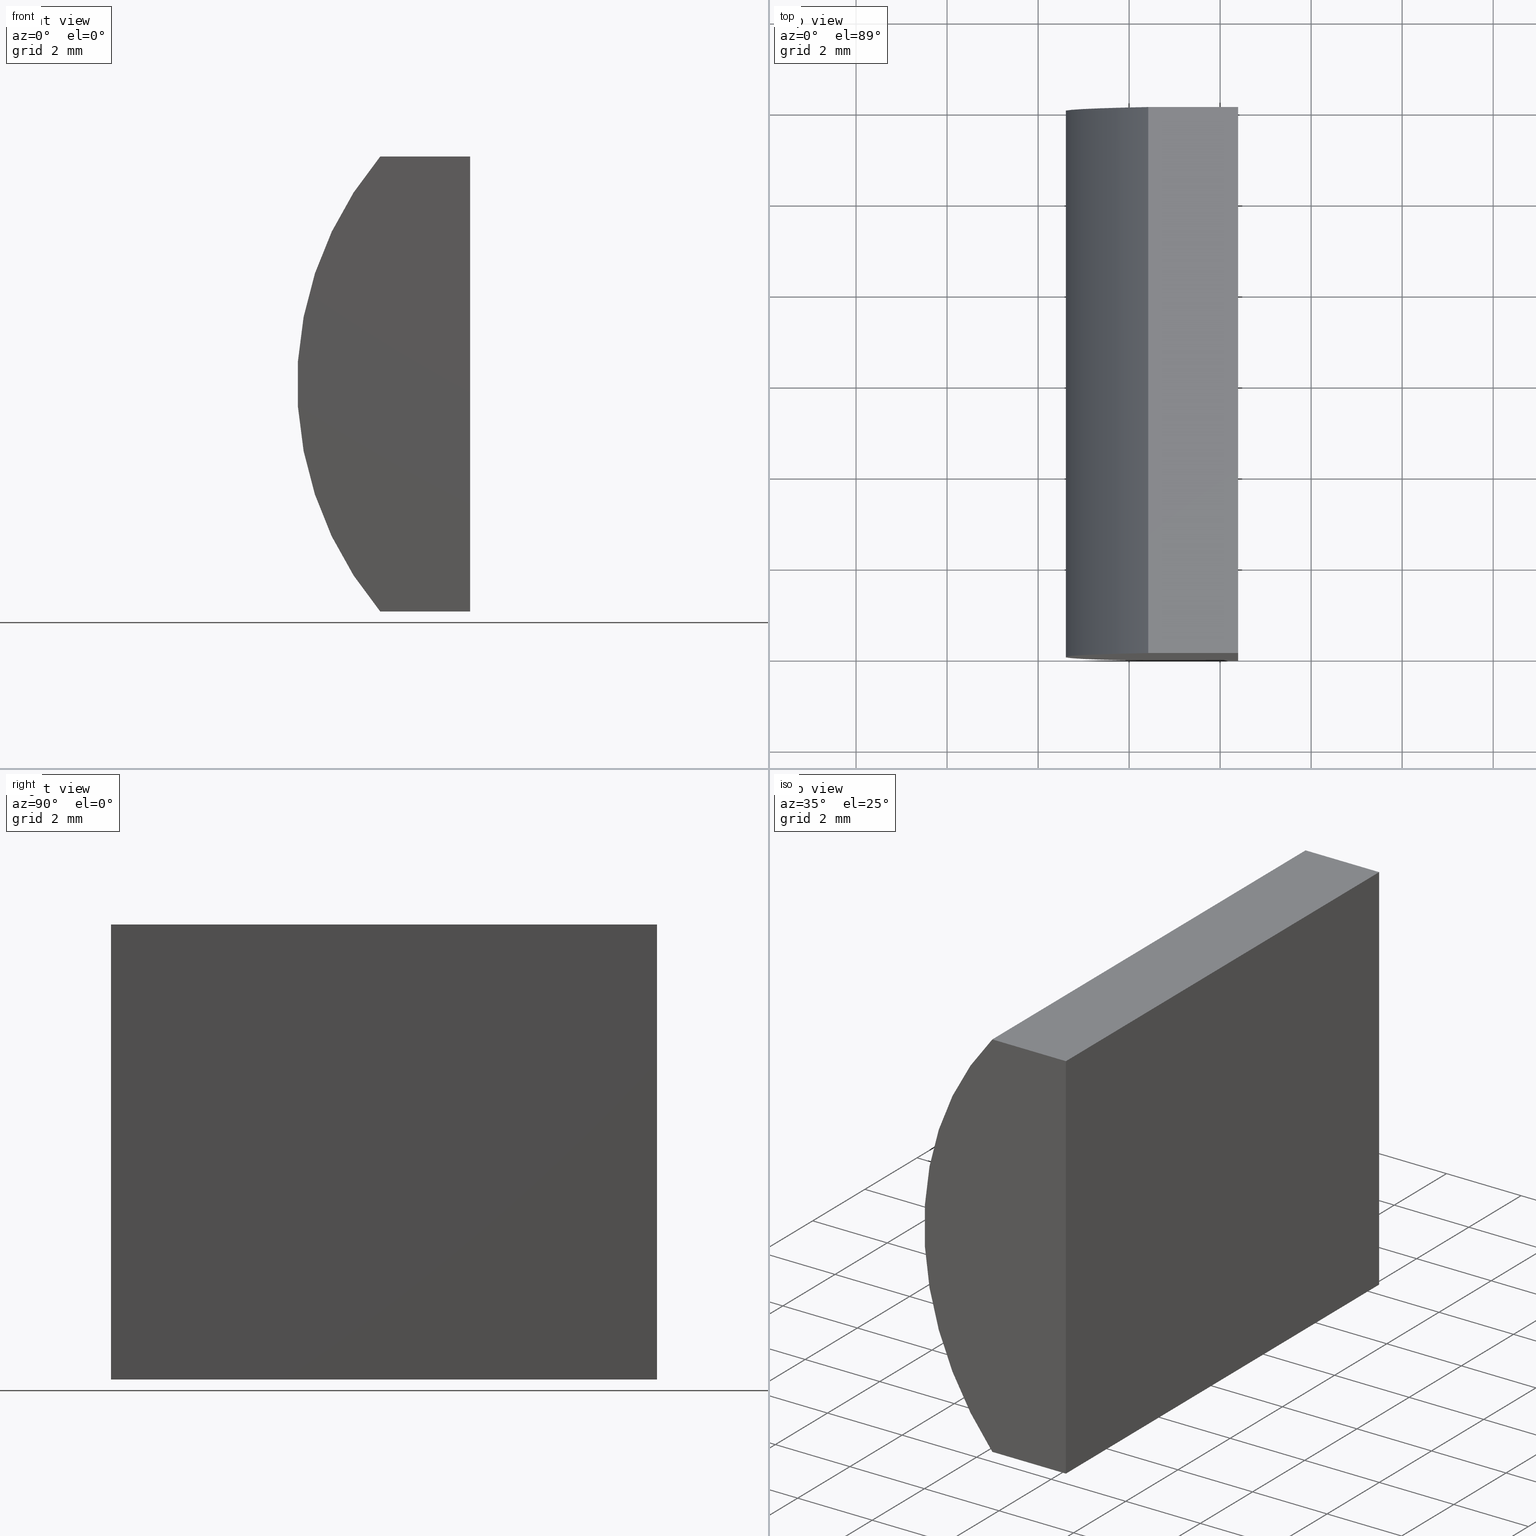
[diagram: canonical four-view strip — front | top / right | iso, engineering-drawing reading convention]
A machine part, canonical four-view strip (front | top / right | iso — engineering-drawing reading convention). The complete STEP part file that produces these views, byte-faithful:
ISO-10303-21;
HEADER;
FILE_DESCRIPTION (( 'STEP AP214' ),
    '1' );
FILE_NAME ('155013.STEP',
    '2019-06-17T01:48:12',
    ( 'user' ),
    ( '΢���й�' ),
    'SwSTEP 2.0',
    'SolidWorks 2016',
    '' );
FILE_SCHEMA (( 'AUTOMOTIVE_DESIGN' ));
ENDSEC;

DATA;
#1 = ADVANCED_FACE ( 'NONE', ( #104 ), #153, .F. ) ;
#2 = CARTESIAN_POINT ( 'NONE',  ( -1.579237509164058500, 12.00000000000000000, 5.000000000000000000 ) ) ;
#3 = EDGE_CURVE ( 'NONE', #82, #86, #166, .T. ) ;
#4 = ORIENTED_EDGE ( 'NONE', *, *, #200, .F. ) ;
#5 = EDGE_LOOP ( 'NONE', ( #77, #6, #204, #175 ) ) ;
#6 = ORIENTED_EDGE ( 'NONE', *, *, #3, .F. ) ;
#7 =( LENGTH_UNIT ( ) NAMED_UNIT ( * ) SI_UNIT ( .MILLI., .METRE. ) );
#8 = SHAPE_DEFINITION_REPRESENTATION ( #112, #13 ) ;
#9 =( NAMED_UNIT ( * ) PLANE_ANGLE_UNIT ( ) SI_UNIT ( $, .RADIAN. ) );
#10 = EDGE_CURVE ( 'NONE', #38, #102, #88, .T. ) ;
#11 =( LENGTH_UNIT ( ) NAMED_UNIT ( * ) SI_UNIT ( .MILLI., .METRE. ) );
#12 = CARTESIAN_POINT ( 'NONE',  ( 4.355204334851265500, 12.00000000000000000, 4.286263797015675000E-017 ) ) ;
#13 = ADVANCED_BREP_SHAPE_REPRESENTATION ( '155013', ( #149, #105 ), #188 ) ;
#14 = VECTOR ( 'NONE', #63, 1000.000000000000000 ) ;
#15 = DIRECTION ( 'NONE',  ( 8.785892991656763200E-016, -0.0000000000000000000, 1.000000000000000000 ) ) ;
#16 = STYLED_ITEM ( 'NONE', ( #99 ), #13 ) ;
#17 =( GEOMETRIC_REPRESENTATION_CONTEXT ( 3 ) GLOBAL_UNCERTAINTY_ASSIGNED_CONTEXT ( ( #140 ) ) GLOBAL_UNIT_ASSIGNED_CONTEXT ( ( #18, #9, #68 ) ) REPRESENTATION_CONTEXT ( 'NONE', 'WORKASPACE' ) );
#18 =( LENGTH_UNIT ( ) NAMED_UNIT ( * ) SI_UNIT ( .MILLI., .METRE. ) );
#19 = EDGE_LOOP ( 'NONE', ( #111, #4, #198, #130 ) ) ;
#20 = CARTESIAN_POINT ( 'NONE',  ( -1.579237509164058500, 12.00000000000000000, -5.000000000000000000 ) ) ;
#21 = DIRECTION ( 'NONE',  ( -1.000000000000000000, 0.0000000000000000000, 3.035766082959411900E-016 ) ) ;
#22 = VERTEX_POINT ( 'NONE', #124 ) ;
#23 = UNCERTAINTY_MEASURE_WITH_UNIT (LENGTH_MEASURE( 1.000000000000000100E-005 ), #11, 'distance_accuracy_value', 'NONE');
#24 = LINE ( 'NONE', #114, #28 ) ;
#25 = DIRECTION ( 'NONE',  ( -0.0000000000000000000, -1.000000000000000000, -0.0000000000000000000 ) ) ;
#26 = CARTESIAN_POINT ( 'NONE',  ( -1.579237509164058500, 0.0000000000000000000, -5.000000000000000000 ) ) ;
#27 = FACE_OUTER_BOUND ( 'NONE', #5, .T. ) ;
#28 = VECTOR ( 'NONE', #165, 1000.000000000000000 ) ;
#29 = VERTEX_POINT ( 'NONE', #43 ) ;
#30 = DIRECTION ( 'NONE',  ( 1.000000000000000000, 0.0000000000000000000, 0.0000000000000000000 ) ) ;
#31 = ADVANCED_FACE ( 'NONE', ( #95 ), #161, .T. ) ;
#32 = PRODUCT_DEFINITION ( 'δ֪', '', #180, #148 ) ;
#33 = CARTESIAN_POINT ( 'NONE',  ( -1.579237509164058500, 12.00000000000000000, -5.000000000000000000 ) ) ;
#34 = DIRECTION ( 'NONE',  ( 0.0000000000000000000, 1.000000000000000000, 0.0000000000000000000 ) ) ;
#35 = ORIENTED_EDGE ( 'NONE', *, *, #160, .F. ) ;
#36 = ADVANCED_FACE ( 'NONE', ( #194 ), #62, .F. ) ;
#37 = AXIS2_PLACEMENT_3D ( 'NONE', #203, #109, #127 ) ;
#38 = VERTEX_POINT ( 'NONE', #197 ) ;
#39 = PRESENTATION_STYLE_ASSIGNMENT (( #186 ) ) ;
#40 = ORIENTED_EDGE ( 'NONE', *, *, #147, .F. ) ;
#41 = LINE ( 'NONE', #2, #70 ) ;
#42 = CARTESIAN_POINT ( 'NONE',  ( -1.579237509164058500, 0.0000000000000000000, 5.000000000000000000 ) ) ;
#43 = CARTESIAN_POINT ( 'NONE',  ( 0.3952043348512662100, 12.00000000000000000, 5.000000000000000000 ) ) ;
#44 = CIRCLE ( 'NONE', #144, 7.759999999999999800 ) ;
#45 = COLOUR_RGB ( '',1.000000000000000000, 1.000000000000000000, 1.000000000000000000 ) ;
#46 = APPLICATION_PROTOCOL_DEFINITION ( 'draft international standard', 'automotive_design', 1998, #155 ) ;
#47 = CARTESIAN_POINT ( 'NONE',  ( -1.579237509164058500, 12.00000000000000000, 5.000000000000000000 ) ) ;
#48 = DIRECTION ( 'NONE',  ( 0.0000000000000000000, 0.0000000000000000000, -1.000000000000000000 ) ) ;
#49 = VECTOR ( 'NONE', #110, 1000.000000000000000 ) ;
#50 = CARTESIAN_POINT ( 'NONE',  ( 0.0000000000000000000, 0.0000000000000000000, 0.0000000000000000000 ) ) ;
#51 = CARTESIAN_POINT ( 'NONE',  ( -1.579237509164058500, 12.00000000000000000, -5.000000000000000000 ) ) ;
#52 = ADVANCED_FACE ( 'NONE', ( #71 ), #181, .T. ) ;
#53 = DIRECTION ( 'NONE',  ( 0.0000000000000000000, 1.000000000000000000, 0.0000000000000000000 ) ) ;
#54 = PRESENTATION_LAYER_ASSIGNMENT (  '', '', ( #16 ) ) ;
#55 = EDGE_CURVE ( 'NONE', #82, #150, #44, .T. ) ;
#56 = DIRECTION ( 'NONE',  ( 0.0000000000000000000, 1.000000000000000000, 0.0000000000000000000 ) ) ;
#57 = AXIS2_PLACEMENT_3D ( 'NONE', #79, #21, #90 ) ;
#58 = LINE ( 'NONE', #192, #80 ) ;
#59 = EDGE_CURVE ( 'NONE', #29, #22, #83, .T. ) ;
#60 = ORIENTED_EDGE ( 'NONE', *, *, #87, .F. ) ;
#61 = DIRECTION ( 'NONE',  ( -0.0000000000000000000, -1.000000000000000000, -0.0000000000000000000 ) ) ;
#62 = PLANE ( 'NONE',  #37 ) ;
#63 = DIRECTION ( 'NONE',  ( -1.000000000000000000, -0.0000000000000000000, 8.785892991656764200E-016 ) ) ;
#64 = CARTESIAN_POINT ( 'NONE',  ( -1.579237509164058500, 12.00000000000000000, 5.000000000000000000 ) ) ;
#65 = LINE ( 'NONE', #33, #14 ) ;
#66 = SURFACE_STYLE_FILL_AREA ( #69 ) ;
#67 = DIRECTION ( 'NONE',  ( 1.000000000000000000, 0.0000000000000000000, 0.0000000000000000000 ) ) ;
#68 =( NAMED_UNIT ( * ) SI_UNIT ( $, .STERADIAN. ) SOLID_ANGLE_UNIT ( ) );
#69 = FILL_AREA_STYLE ('',( #156 ) ) ;
#70 = VECTOR ( 'NONE', #189, 1000.000000000000000 ) ;
#71 = FACE_OUTER_BOUND ( 'NONE', #162, .T. ) ;
#72 = AXIS2_PLACEMENT_3D ( 'NONE', #12, #56, #81 ) ;
#73 = EDGE_CURVE ( 'NONE', #22, #82, #65, .T. ) ;
#74 = MECHANICAL_DESIGN_GEOMETRIC_PRESENTATION_REPRESENTATION (  '', ( #16 ), #196 ) ;
#75 =( NAMED_UNIT ( * ) SI_UNIT ( $, .STERADIAN. ) SOLID_ANGLE_UNIT ( ) );
#76 = FILL_AREA_STYLE ('',( #93 ) ) ;
#77 = ORIENTED_EDGE ( 'NONE', *, *, #133, .T. ) ;
#78 = LINE ( 'NONE', #169, #176 ) ;
#79 = CARTESIAN_POINT ( 'NONE',  ( 0.3952043348512631600, 12.00000000000000000, -5.000000000000001800 ) ) ;
#80 = VECTOR ( 'NONE', #172, 1000.000000000000000 ) ;
#81 = DIRECTION ( 'NONE',  ( 0.0000000000000000000, -0.0000000000000000000, 1.000000000000000000 ) ) ;
#82 = VERTEX_POINT ( 'NONE', #20 ) ;
#83 = LINE ( 'NONE', #126, #179 ) ;
#84 = ADVANCED_FACE ( 'NONE', ( #27 ), #168, .F. ) ;
#85 = MECHANICAL_DESIGN_GEOMETRIC_PRESENTATION_REPRESENTATION (  '', ( #118 ), #17 ) ;
#86 = VERTEX_POINT ( 'NONE', #26 ) ;
#87 = EDGE_CURVE ( 'NONE', #150, #29, #116, .T. ) ;
#88 = LINE ( 'NONE', #42, #201 ) ;
#89 = CARTESIAN_POINT ( 'NONE',  ( -1.579237509164058500, 12.00000000000000000, -5.000000000000000000 ) ) ;
#90 = DIRECTION ( 'NONE',  ( 3.035766082959411900E-016, 0.0000000000000000000, 1.000000000000000000 ) ) ;
#91 = DIRECTION ( 'NONE',  ( 0.0000000000000000000, 0.0000000000000000000, 1.000000000000000000 ) ) ;
#92 = EDGE_LOOP ( 'NONE', ( #125, #170, #98, #163 ) ) ;
#93 = FILL_AREA_STYLE_COLOUR ( '', #45 ) ;
#94 = SURFACE_STYLE_USAGE ( .BOTH. , #199 ) ;
#95 = FACE_OUTER_BOUND ( 'NONE', #92, .T. ) ;
#96 = APPLICATION_CONTEXT ( 'automotive_design' ) ;
#97 = AXIS2_PLACEMENT_3D ( 'NONE', #123, #158, #48 ) ;
#98 = ORIENTED_EDGE ( 'NONE', *, *, #55, .F. ) ;
#99 = PRESENTATION_STYLE_ASSIGNMENT (( #94 ) ) ;
#100 = VECTOR ( 'NONE', #25, 1000.000000000000000 ) ;
#101 = SURFACE_STYLE_FILL_AREA ( #76 ) ;
#102 = VERTEX_POINT ( 'NONE', #190 ) ;
#103 = AXIS2_PLACEMENT_3D ( 'NONE', #89, #15, #202 ) ;
#104 = FACE_OUTER_BOUND ( 'NONE', #187, .T. ) ;
#105 = AXIS2_PLACEMENT_3D ( 'NONE', #50, #185, #67 ) ;
#106 = ORIENTED_EDGE ( 'NONE', *, *, #73, .T. ) ;
#107 = CARTESIAN_POINT ( 'NONE',  ( 4.355204334851265500, 0.0000000000000000000, 4.286263797015675000E-017 ) ) ;
#108 =( NAMED_UNIT ( * ) SI_UNIT ( $, .STERADIAN. ) SOLID_ANGLE_UNIT ( ) );
#109 = DIRECTION ( 'NONE',  ( 0.0000000000000000000, 0.0000000000000000000, -1.000000000000000000 ) ) ;
#110 = DIRECTION ( 'NONE',  ( -1.000000000000000000, -0.0000000000000000000, 8.785892991656764200E-016 ) ) ;
#111 = ORIENTED_EDGE ( 'NONE', *, *, #191, .T. ) ;
#112 = PRODUCT_DEFINITION_SHAPE ( 'NONE', 'NONE',  #32 ) ;
#113 = DIRECTION ( 'NONE',  ( 1.000000000000000000, 0.0000000000000000000, 0.0000000000000000000 ) ) ;
#114 = CARTESIAN_POINT ( 'NONE',  ( 0.3952043348512662100, 12.00000000000000000, 5.000000000000000000 ) ) ;
#115 = ORIENTED_EDGE ( 'NONE', *, *, #10, .F. ) ;
#116 = LINE ( 'NONE', #47, #146 ) ;
#117 = AXIS2_PLACEMENT_3D ( 'NONE', #107, #53, #164 ) ;
#118 = STYLED_ITEM ( 'NONE', ( #39 ), #149 ) ;
#119 = EDGE_LOOP ( 'NONE', ( #136, #35, #60, #159 ) ) ;
#120 = CIRCLE ( 'NONE', #173, 7.759999999999999800 ) ;
#121 = DIRECTION ( 'NONE',  ( 0.0000000000000000000, 1.000000000000000000, 0.0000000000000000000 ) ) ;
#122 = APPLICATION_PROTOCOL_DEFINITION ( 'draft international standard', 'automotive_design', 1998, #96 ) ;
#123 = CARTESIAN_POINT ( 'NONE',  ( 4.355204334851265500, 12.00000000000000000, 4.286263797015675000E-017 ) ) ;
#124 = CARTESIAN_POINT ( 'NONE',  ( 0.3952043348512631600, 12.00000000000000000, -5.000000000000001800 ) ) ;
#125 = ORIENTED_EDGE ( 'NONE', *, *, #147, .T. ) ;
#126 = CARTESIAN_POINT ( 'NONE',  ( 0.3952043348512631600, 12.00000000000000000, -5.000000000000001800 ) ) ;
#127 = DIRECTION ( 'NONE',  ( -1.000000000000000000, 0.0000000000000000000, -0.0000000000000000000 ) ) ;
#128 = CARTESIAN_POINT ( 'NONE',  ( 4.355204334851265500, 0.0000000000000000000, 4.286263797015675000E-017 ) ) ;
#129 = LINE ( 'NONE', #139, #49 ) ;
#130 = ORIENTED_EDGE ( 'NONE', *, *, #160, .T. ) ;
#131 = PRODUCT ( '155013', '155013', '', ( #152 ) ) ;
#132 = ORIENTED_EDGE ( 'NONE', *, *, #191, .F. ) ;
#133 = EDGE_CURVE ( 'NONE', #182, #86, #129, .T. ) ;
#134 = ORIENTED_EDGE ( 'NONE', *, *, #133, .F. ) ;
#135 =( NAMED_UNIT ( * ) PLANE_ANGLE_UNIT ( ) SI_UNIT ( $, .RADIAN. ) );
#136 = ORIENTED_EDGE ( 'NONE', *, *, #10, .T. ) ;
#137 =( NAMED_UNIT ( * ) PLANE_ANGLE_UNIT ( ) SI_UNIT ( $, .RADIAN. ) );
#138 = ORIENTED_EDGE ( 'NONE', *, *, #55, .T. ) ;
#139 = CARTESIAN_POINT ( 'NONE',  ( -1.579237509164058500, 0.0000000000000000000, -5.000000000000000000 ) ) ;
#140 = UNCERTAINTY_MEASURE_WITH_UNIT (LENGTH_MEASURE( 1.000000000000000100E-005 ), #18, 'distance_accuracy_value', 'NONE');
#141 = PLANE ( 'NONE',  #57 ) ;
#142 = ORIENTED_EDGE ( 'NONE', *, *, #59, .T. ) ;
#143 = DIRECTION ( 'NONE',  ( 0.0000000000000000000, 0.0000000000000000000, 1.000000000000000000 ) ) ;
#144 = AXIS2_PLACEMENT_3D ( 'NONE', #184, #121, #91 ) ;
#145 = FACE_OUTER_BOUND ( 'NONE', #19, .T. ) ;
#146 = VECTOR ( 'NONE', #113, 1000.000000000000000 ) ;
#147 = EDGE_CURVE ( 'NONE', #86, #38, #120, .T. ) ;
#148 = PRODUCT_DEFINITION_CONTEXT ( 'detailed design', #155, 'design' ) ;
#149 = MANIFOLD_SOLID_BREP ( '͹̨-����1', #174 ) ;
#150 = VERTEX_POINT ( 'NONE', #64 ) ;
#151 = SURFACE_SIDE_STYLE ('',( #101 ) ) ;
#152 = PRODUCT_CONTEXT ( 'NONE', #96, 'mechanical' ) ;
#153 = PLANE ( 'NONE',  #117 ) ;
#154 = UNCERTAINTY_MEASURE_WITH_UNIT (LENGTH_MEASURE( 1.000000000000000100E-005 ), #7, 'distance_accuracy_value', 'NONE');
#155 = APPLICATION_CONTEXT ( 'automotive_design' ) ;
#156 = FILL_AREA_STYLE_COLOUR ( '', #167 ) ;
#157 = DIRECTION ( 'NONE',  ( -3.035766082959411900E-016, -0.0000000000000000000, -1.000000000000000000 ) ) ;
#158 = DIRECTION ( 'NONE',  ( -0.0000000000000000000, -1.000000000000000000, -0.0000000000000000000 ) ) ;
#159 = ORIENTED_EDGE ( 'NONE', *, *, #195, .T. ) ;
#160 = EDGE_CURVE ( 'NONE', #29, #102, #24, .T. ) ;
#161 = CYLINDRICAL_SURFACE ( 'NONE', #97, 7.759999999999999800 ) ;
#162 = EDGE_LOOP ( 'NONE', ( #138, #193, #142, #106 ) ) ;
#163 = ORIENTED_EDGE ( 'NONE', *, *, #3, .T. ) ;
#164 = DIRECTION ( 'NONE',  ( 0.0000000000000000000, -0.0000000000000000000, 1.000000000000000000 ) ) ;
#165 = DIRECTION ( 'NONE',  ( -0.0000000000000000000, -1.000000000000000000, -0.0000000000000000000 ) ) ;
#166 = LINE ( 'NONE', #51, #100 ) ;
#167 = COLOUR_RGB ( '',1.000000000000000000, 1.000000000000000000, 1.000000000000000000 ) ;
#168 = PLANE ( 'NONE',  #103 ) ;
#169 = CARTESIAN_POINT ( 'NONE',  ( 0.3952043348512631600, 12.00000000000000000, -5.000000000000001800 ) ) ;
#170 = ORIENTED_EDGE ( 'NONE', *, *, #195, .F. ) ;
#171 = PRODUCT_RELATED_PRODUCT_CATEGORY ( 'part', '', ( #131 ) ) ;
#172 = DIRECTION ( 'NONE',  ( -3.035766082959411900E-016, -0.0000000000000000000, -1.000000000000000000 ) ) ;
#173 = AXIS2_PLACEMENT_3D ( 'NONE', #128, #34, #143 ) ;
#174 = CLOSED_SHELL ( 'NONE', ( #31, #36, #177, #84, #52, #1 ) ) ;
#175 = ORIENTED_EDGE ( 'NONE', *, *, #200, .T. ) ;
#176 = VECTOR ( 'NONE', #61, 1000.000000000000000 ) ;
#177 = ADVANCED_FACE ( 'NONE', ( #145 ), #141, .F. ) ;
#178 = PRESENTATION_LAYER_ASSIGNMENT (  '', '', ( #118 ) ) ;
#179 = VECTOR ( 'NONE', #157, 1000.000000000000000 ) ;
#180 = PRODUCT_DEFINITION_FORMATION_WITH_SPECIFIED_SOURCE ( '�κ�', '', #131, .NOT_KNOWN. ) ;
#181 = PLANE ( 'NONE',  #72 ) ;
#182 = VERTEX_POINT ( 'NONE', #183 ) ;
#183 = CARTESIAN_POINT ( 'NONE',  ( 0.3952043348512631600, 0.0000000000000000000, -5.000000000000001800 ) ) ;
#184 = CARTESIAN_POINT ( 'NONE',  ( 4.355204334851265500, 12.00000000000000000, 4.286263797015675000E-017 ) ) ;
#185 = DIRECTION ( 'NONE',  ( 0.0000000000000000000, 0.0000000000000000000, 1.000000000000000000 ) ) ;
#186 = SURFACE_STYLE_USAGE ( .BOTH. , #151 ) ;
#187 = EDGE_LOOP ( 'NONE', ( #40, #134, #132, #115 ) ) ;
#188 =( GEOMETRIC_REPRESENTATION_CONTEXT ( 3 ) GLOBAL_UNCERTAINTY_ASSIGNED_CONTEXT ( ( #23 ) ) GLOBAL_UNIT_ASSIGNED_CONTEXT ( ( #11, #137, #108 ) ) REPRESENTATION_CONTEXT ( 'NONE', 'WORKASPACE' ) );
#189 = DIRECTION ( 'NONE',  ( -0.0000000000000000000, -1.000000000000000000, -0.0000000000000000000 ) ) ;
#190 = CARTESIAN_POINT ( 'NONE',  ( 0.3952043348512662100, 0.0000000000000000000, 5.000000000000000000 ) ) ;
#191 = EDGE_CURVE ( 'NONE', #102, #182, #58, .T. ) ;
#192 = CARTESIAN_POINT ( 'NONE',  ( 0.3952043348512631600, 0.0000000000000000000, -5.000000000000001800 ) ) ;
#193 = ORIENTED_EDGE ( 'NONE', *, *, #87, .T. ) ;
#194 = FACE_OUTER_BOUND ( 'NONE', #119, .T. ) ;
#195 = EDGE_CURVE ( 'NONE', #150, #38, #41, .T. ) ;
#196 =( GEOMETRIC_REPRESENTATION_CONTEXT ( 3 ) GLOBAL_UNCERTAINTY_ASSIGNED_CONTEXT ( ( #154 ) ) GLOBAL_UNIT_ASSIGNED_CONTEXT ( ( #7, #135, #75 ) ) REPRESENTATION_CONTEXT ( 'NONE', 'WORKASPACE' ) );
#197 = CARTESIAN_POINT ( 'NONE',  ( -1.579237509164058500, 0.0000000000000000000, 5.000000000000000000 ) ) ;
#198 = ORIENTED_EDGE ( 'NONE', *, *, #59, .F. ) ;
#199 = SURFACE_SIDE_STYLE ('',( #66 ) ) ;
#200 = EDGE_CURVE ( 'NONE', #22, #182, #78, .T. ) ;
#201 = VECTOR ( 'NONE', #30, 1000.000000000000000 ) ;
#202 = DIRECTION ( 'NONE',  ( 1.000000000000000000, 0.0000000000000000000, -8.785892991656763200E-016 ) ) ;
#203 = CARTESIAN_POINT ( 'NONE',  ( -1.579237509164058500, 12.00000000000000000, 5.000000000000000000 ) ) ;
#204 = ORIENTED_EDGE ( 'NONE', *, *, #73, .F. ) ;
ENDSEC;
END-ISO-10303-21;
